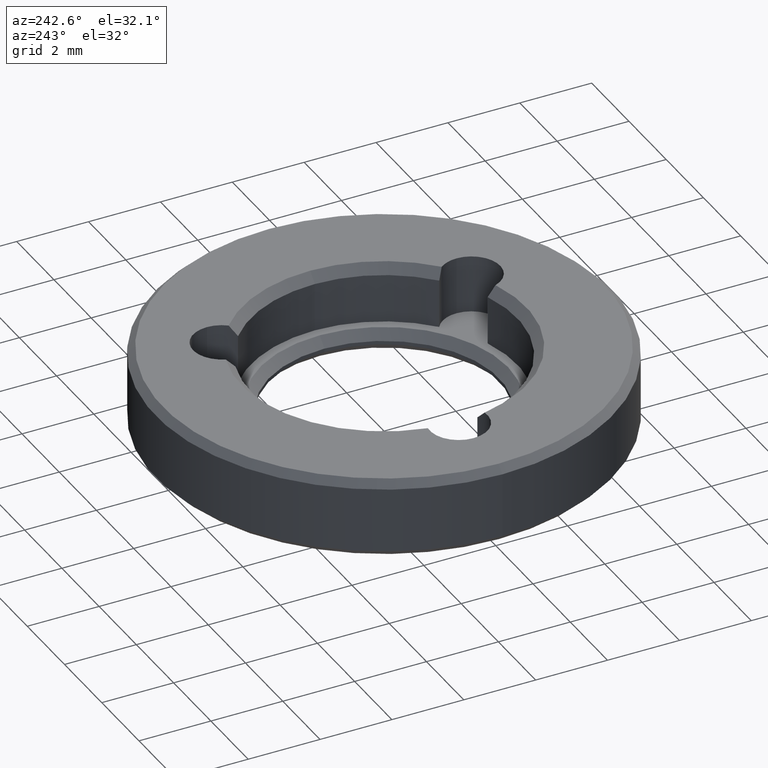
[diagram: clean part render]
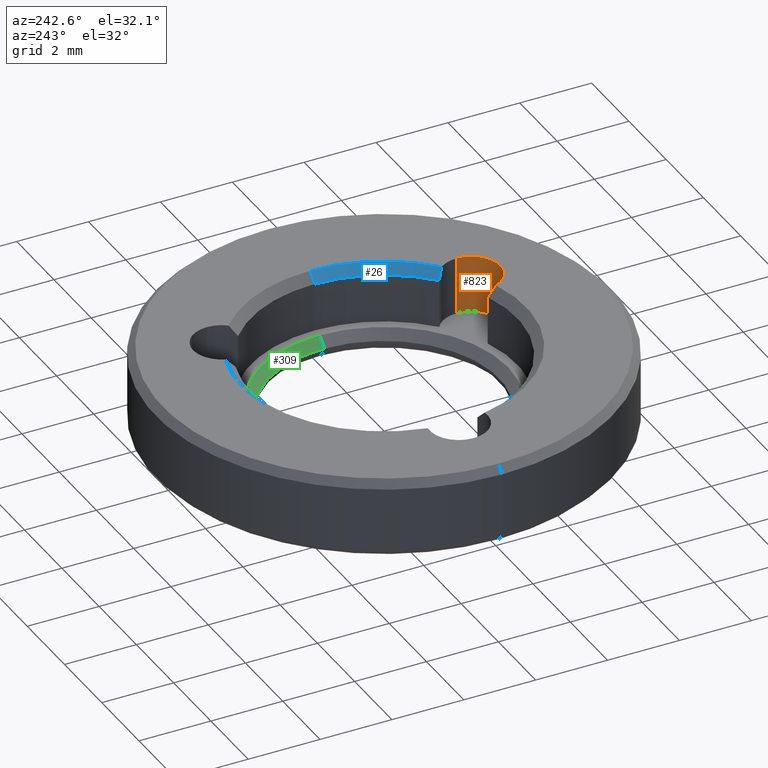
[diagram: same view with three faces highlighted in distinct colors, each labeled with its STEP entity id]
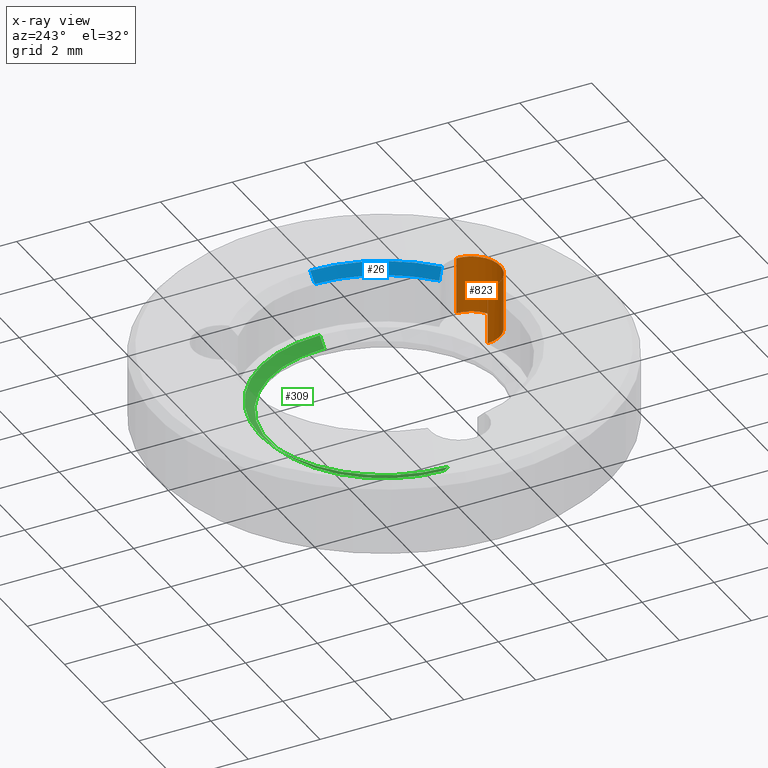
[diagram: x-ray of the same camera — body ghosted, the three highlighted faces saturated]
A machine part, auxiliary view with three faces highlighted in distinct colors.
The next image is the same camera in x-ray (body ghosted, the three faces saturated) — at least one of them is partly hidden behind the body in this view.
Their STEP definitions:

[orange] entity #823 — the highlighted cylindrical surface (edge-blend (fillet) strip) has radius 0.8 mm, axis along (0, -0, 1).
#10 = CARTESIAN_POINT ( 'NONE',  ( 2.005000000000016769, -3.472761869175589489, -1.662741699796954853 ) ) ;
#25 = CARTESIAN_POINT ( 'NONE',  ( 1.209650000469256748, -3.594431320801747987, 2.032439968515265427 ) ) ;
#32 = EDGE_CURVE ( 'NONE', #462, #103, #820, .T. ) ;
#47 = VERTEX_POINT ( 'NONE', #906 ) ;
#83 = ORIENTED_EDGE ( 'NONE', *, *, #606, .T. ) ;
#97 = DIRECTION ( 'NONE',  ( 0.000000000000000000, -0.000000000000000000, 1.000000000000000000 ) ) ;
#103 = VERTEX_POINT ( 'NONE', #843 ) ;
#108 = CARTESIAN_POINT ( 'NONE',  ( 1.205802284999181850, -3.508581030771663833, 0.6000000000000003109 ) ) ;
#123 = ORIENTED_EDGE ( 'NONE', *, *, #674, .F. ) ;
#217 = ORIENTED_EDGE ( 'NONE', *, *, #225, .T. ) ;
#225 = EDGE_CURVE ( 'NONE', #462, #683, #239, .T. ) ;
#239 = CIRCLE ( 'NONE', #531, 0.8000000000000008216 ) ;
#244 = EDGE_CURVE ( 'NONE', #861, #103, #590, .T. ) ;
#256 = AXIS2_PLACEMENT_3D ( 'NONE', #571, #304, #434 ) ;
#291 = CARTESIAN_POINT ( 'NONE',  ( 1.226823854763395838, -3.676560807795061336, 2.115846467630482231 ) ) ;
#304 = DIRECTION ( 'NONE',  ( 0.000000000000000000, 0.000000000000000000, 1.000000000000000000 ) ) ;
#327 = B_SPLINE_CURVE_WITH_KNOTS ( 'NONE', 3,
 ( #652, #25, #291, #569 ),
 .UNSPECIFIED., .F., .F.,
 ( 4, 4 ),
 ( 2.870187314672948299E-07, 0.0003552106479450251172 ),
 .UNSPECIFIED. ) ;
#334 = CARTESIAN_POINT ( 'NONE',  ( 2.805000000000017479, -3.472761869175589489, -1.662741699796954853 ) ) ;
#379 = CARTESIAN_POINT ( 'NONE',  ( 2.005000000000016769, -3.472761869175589489, 0.6000000000000003109 ) ) ;
#383 = AXIS2_PLACEMENT_3D ( 'NONE', #10, #97, #729 ) ;
#384 = DIRECTION ( 'NONE',  ( 1.000000000000000000, 0.000000000000000000, 0.000000000000000000 ) ) ;
#419 = FACE_OUTER_BOUND ( 'NONE', #602, .T. ) ;
#434 = DIRECTION ( 'NONE',  ( -0.5000000000000039968, 0.8660254037844362651, 0.000000000000000000 ) ) ;
#438 = LINE ( 'NONE', #661, #854 ) ;
#447 = DIRECTION ( 'NONE',  ( -0.000000000000000000, 0.000000000000000000, -1.000000000000000000 ) ) ;
#462 = VERTEX_POINT ( 'NONE', #469 ) ;
#469 = CARTESIAN_POINT ( 'NONE',  ( 2.805000000000017479, -3.472761869175589489, 0.6000000000000003109 ) ) ;
#478 = VECTOR ( 'NONE', #613, 1000.000000000000000 ) ;
#511 = CYLINDRICAL_SURFACE ( 'NONE', #383, 0.8000000000000008216 ) ;
#531 = AXIS2_PLACEMENT_3D ( 'NONE', #379, #662, #384 ) ;
#559 = ORIENTED_EDGE ( 'NONE', *, *, #32, .F. ) ;
#569 = CARTESIAN_POINT ( 'NONE',  ( 1.256571113365398507, -3.755346726609364527, 2.200000000000000178 ) ) ;
#571 = CARTESIAN_POINT ( 'NONE',  ( 2.005000000000016769, -3.472761869175589489, 2.200000000000000178 ) ) ;
#590 = CIRCLE ( 'NONE', #256, 0.8000000000000009326 ) ;
#602 = EDGE_LOOP ( 'NONE', ( #559, #217, #123, #83, #679 ) ) ;
#606 = EDGE_CURVE ( 'NONE', #47, #861, #327, .T. ) ;
#613 = DIRECTION ( 'NONE',  ( 0.000000000000000000, -0.000000000000000000, 1.000000000000000000 ) ) ;
#647 = CARTESIAN_POINT ( 'NONE',  ( 1.256571113365398507, -3.755346726609364527, 2.200000000000000178 ) ) ;
#652 = CARTESIAN_POINT ( 'NONE',  ( 1.205802284999181850, -3.508581030771663833, 1.949999999999998179 ) ) ;
#661 = CARTESIAN_POINT ( 'NONE',  ( 1.205802284999182072, -3.508581030771663833, 1.400000000000000133 ) ) ;
#662 = DIRECTION ( 'NONE',  ( -0.000000000000000000, -0.000000000000000000, -1.000000000000000000 ) ) ;
#674 = EDGE_CURVE ( 'NONE', #47, #683, #438, .T. ) ;
#679 = ORIENTED_EDGE ( 'NONE', *, *, #244, .T. ) ;
#683 = VERTEX_POINT ( 'NONE', #108 ) ;
#729 = DIRECTION ( 'NONE',  ( 1.000000000000000000, 0.000000000000000000, 0.000000000000000000 ) ) ;
#820 = LINE ( 'NONE', #334, #478 ) ;
#823 = ADVANCED_FACE ( 'NONE', ( #419 ), #511, .F. ) ;
#843 = CARTESIAN_POINT ( 'NONE',  ( 2.805000000000017479, -3.472761869175589489, 2.200000000000000178 ) ) ;
#854 = VECTOR ( 'NONE', #447, 1000.000000000000000 ) ;
#861 = VERTEX_POINT ( 'NONE', #647 ) ;
#906 = CARTESIAN_POINT ( 'NONE',  ( 1.205802284999181850, -3.508581030771663833, 1.949999999999998179 ) ) ;

[blue] entity #26 — the highlighted conical surface has half-angle 45 deg.
#11 = VERTEX_POINT ( 'NONE', #59 ) ;
#16 = VERTEX_POINT ( 'NONE', #618 ) ;
#26 = ADVANCED_FACE ( 'NONE', ( #331 ), #62, .F. ) ;
#58 = DIRECTION ( 'NONE',  ( 0.000000000000000000, 0.000000000000000000, 1.000000000000000000 ) ) ;
#59 = CARTESIAN_POINT ( 'NONE',  ( 2.623940108579774222, -2.965895869140787511, 2.200000000000000178 ) ) ;
#61 = EDGE_CURVE ( 'NONE', #16, #11, #572, .T. ) ;
#62 = CONICAL_SURFACE ( 'NONE', #706, 3.709999999999999964, 0.7853981633974517207 ) ;
#64 = CARTESIAN_POINT ( 'NONE',  ( 2.435619161384888098, -2.798545926136423834, 1.949999999999998179 ) ) ;
#95 = AXIS2_PLACEMENT_3D ( 'NONE', #397, #58, #897 ) ;
#107 = ORIENTED_EDGE ( 'NONE', *, *, #443, .F. ) ;
#134 = AXIS2_PLACEMENT_3D ( 'NONE', #479, #145, #351 ) ;
#145 = DIRECTION ( 'NONE',  ( -0.000000000000000000, -0.000000000000000000, -1.000000000000000000 ) ) ;
#146 = CARTESIAN_POINT ( 'NONE',  ( 3.709999999999999964, 0.000000000000000000, 1.949999999999998179 ) ) ;
#171 = DIRECTION ( 'NONE',  ( 0.7071067811865500152, 0.000000000000000000, 0.7071067811865451302 ) ) ;
#231 = CARTESIAN_POINT ( 'NONE',  ( 3.709999999999999964, 0.000000000000000000, 1.949999999999998179 ) ) ;
#235 = CARTESIAN_POINT ( 'NONE',  ( 2.508043835738169580, -2.844803290495086845, 2.032439968515269424 ) ) ;
#254 = EDGE_CURVE ( 'NONE', #11, #426, #745, .T. ) ;
#259 = VERTEX_POINT ( 'NONE', #231 ) ;
#331 = FACE_OUTER_BOUND ( 'NONE', #730, .T. ) ;
#351 = DIRECTION ( 'NONE',  ( 1.000000000000000000, 0.000000000000000000, 0.000000000000000000 ) ) ;
#369 = CIRCLE ( 'NONE', #95, 3.709999999999999964 ) ;
#397 = CARTESIAN_POINT ( 'NONE',  ( 0.000000000000000000, 0.000000000000000000, 1.949999999999998179 ) ) ;
#426 = VERTEX_POINT ( 'NONE', #64 ) ;
#443 = EDGE_CURVE ( 'NONE', #426, #259, #369, .T. ) ;
#479 = CARTESIAN_POINT ( 'NONE',  ( 0.000000000000000000, 0.000000000000000000, 2.200000000000000178 ) ) ;
#508 = ORIENTED_EDGE ( 'NONE', *, *, #61, .F. ) ;
#532 = VECTOR ( 'NONE', #171, 1000.000000000000114 ) ;
#572 = CIRCLE ( 'NONE', #134, 3.960000000000003517 ) ;
#578 = CARTESIAN_POINT ( 'NONE',  ( 2.570583130727092325, -2.900741028091359919, 2.115846467630486227 ) ) ;
#581 = ORIENTED_EDGE ( 'NONE', *, *, #254, .F. ) ;
#585 = ORIENTED_EDGE ( 'NONE', *, *, #833, .F. ) ;
#618 = CARTESIAN_POINT ( 'NONE',  ( 3.960000000000003517, 0.000000000000000000, 2.200000000000000178 ) ) ;
#671 = CARTESIAN_POINT ( 'NONE',  ( 2.435619161384888098, -2.798545926136423834, 1.949999999999998179 ) ) ;
#706 = AXIS2_PLACEMENT_3D ( 'NONE', #821, #898, #813 ) ;
#730 = EDGE_LOOP ( 'NONE', ( #585, #107, #581, #508 ) ) ;
#745 = B_SPLINE_CURVE_WITH_KNOTS ( 'NONE', 3,
 ( #863, #578, #235, #671 ),
 .UNSPECIFIED., .F., .F.,
 ( 4, 4 ),
 ( 2.811693700402019441E-07, 0.0003552047985835973852 ),
 .UNSPECIFIED. ) ;
#813 = DIRECTION ( 'NONE',  ( 1.000000000000000000, 0.000000000000000000, 0.000000000000000000 ) ) ;
#821 = CARTESIAN_POINT ( 'NONE',  ( 0.000000000000000000, 0.000000000000000000, 1.949999999999998179 ) ) ;
#833 = EDGE_CURVE ( 'NONE', #259, #16, #855, .T. ) ;
#855 = LINE ( 'NONE', #146, #532 ) ;
#863 = CARTESIAN_POINT ( 'NONE',  ( 2.623940108579774222, -2.965895869140787511, 2.200000000000000178 ) ) ;
#897 = DIRECTION ( 'NONE',  ( 1.000000000000000000, 0.000000000000000000, 0.000000000000000000 ) ) ;
#898 = DIRECTION ( 'NONE',  ( 0.000000000000000000, 0.000000000000000000, 1.000000000000000000 ) ) ;

[green] entity #309 — the highlighted conical surface has half-angle 45 deg.
#39 = AXIS2_PLACEMENT_3D ( 'NONE', #733, #246, #105 ) ;
#44 = ORIENTED_EDGE ( 'NONE', *, *, #473, .F. ) ;
#60 = CIRCLE ( 'NONE', #592, 3.450000000000001510 ) ;
#71 = ORIENTED_EDGE ( 'NONE', *, *, #754, .F. ) ;
#78 = VECTOR ( 'NONE', #276, 1000.000000000000114 ) ;
#88 = DIRECTION ( 'NONE',  ( 0.7071067811865543451, 0.000000000000000000, 0.7071067811865408004 ) ) ;
#99 = DIRECTION ( 'NONE',  ( 1.000000000000000000, 0.000000000000000000, 0.000000000000000000 ) ) ;
#105 = DIRECTION ( 'NONE',  ( 1.000000000000000000, 0.000000000000000000, 0.000000000000000000 ) ) ;
#135 = VECTOR ( 'NONE', #88, 1000.000000000000114 ) ;
#185 = CONICAL_SURFACE ( 'NONE', #39, 3.200000000000000178, 0.7853981633974579379 ) ;
#203 = CARTESIAN_POINT ( 'NONE',  ( -3.450000000000001510, 4.225031457058370303E-16, 0.6000000000000000888 ) ) ;
#230 = EDGE_CURVE ( 'NONE', #771, #386, #382, .T. ) ;
#241 = FACE_OUTER_BOUND ( 'NONE', #885, .T. ) ;
#246 = DIRECTION ( 'NONE',  ( 0.000000000000000000, 0.000000000000000000, 1.000000000000000000 ) ) ;
#276 = DIRECTION ( 'NONE',  ( -0.7071067811865543451, 8.659560562355016675E-17, 0.7071067811865408004 ) ) ;
#309 = ADVANCED_FACE ( 'NONE', ( #241 ), #185, .F. ) ;
#338 = VERTEX_POINT ( 'NONE', #203 ) ;
#346 = CARTESIAN_POINT ( 'NONE',  ( -3.200000000000000178, 3.918869757271530460E-16, 0.3500000000000033085 ) ) ;
#358 = ORIENTED_EDGE ( 'NONE', *, *, #230, .F. ) ;
#370 = CARTESIAN_POINT ( 'NONE',  ( 0.000000000000000000, 0.000000000000000000, 0.3500000000000033085 ) ) ;
#382 = CIRCLE ( 'NONE', #558, 3.200000000000000178 ) ;
#386 = VERTEX_POINT ( 'NONE', #548 ) ;
#422 = LINE ( 'NONE', #862, #135 ) ;
#429 = DIRECTION ( 'NONE',  ( 0.000000000000000000, 0.000000000000000000, 1.000000000000000000 ) ) ;
#452 = CARTESIAN_POINT ( 'NONE',  ( 0.000000000000000000, 0.000000000000000000, 0.6000000000000000888 ) ) ;
#473 = EDGE_CURVE ( 'NONE', #386, #338, #482, .T. ) ;
#482 = LINE ( 'NONE', #346, #78 ) ;
#526 = EDGE_CURVE ( 'NONE', #771, #716, #422, .T. ) ;
#546 = ORIENTED_EDGE ( 'NONE', *, *, #526, .T. ) ;
#548 = CARTESIAN_POINT ( 'NONE',  ( -3.200000000000000178, 3.918869757271530460E-16, 0.3500000000000033085 ) ) ;
#558 = AXIS2_PLACEMENT_3D ( 'NONE', #370, #429, #737 ) ;
#573 = CARTESIAN_POINT ( 'NONE',  ( 3.200000000000000178, 0.000000000000000000, 0.3500000000000033085 ) ) ;
#592 = AXIS2_PLACEMENT_3D ( 'NONE', #452, #727, #99 ) ;
#716 = VERTEX_POINT ( 'NONE', #876 ) ;
#727 = DIRECTION ( 'NONE',  ( -0.000000000000000000, -0.000000000000000000, -1.000000000000000000 ) ) ;
#733 = CARTESIAN_POINT ( 'NONE',  ( 0.000000000000000000, 0.000000000000000000, 0.3500000000000033085 ) ) ;
#737 = DIRECTION ( 'NONE',  ( 1.000000000000000000, 0.000000000000000000, 0.000000000000000000 ) ) ;
#754 = EDGE_CURVE ( 'NONE', #338, #716, #60, .T. ) ;
#771 = VERTEX_POINT ( 'NONE', #573 ) ;
#862 = CARTESIAN_POINT ( 'NONE',  ( 3.200000000000000178, 0.000000000000000000, 0.3500000000000033085 ) ) ;
#876 = CARTESIAN_POINT ( 'NONE',  ( 3.450000000000001510, 0.000000000000000000, 0.6000000000000000888 ) ) ;
#885 = EDGE_LOOP ( 'NONE', ( #44, #358, #546, #71 ) ) ;